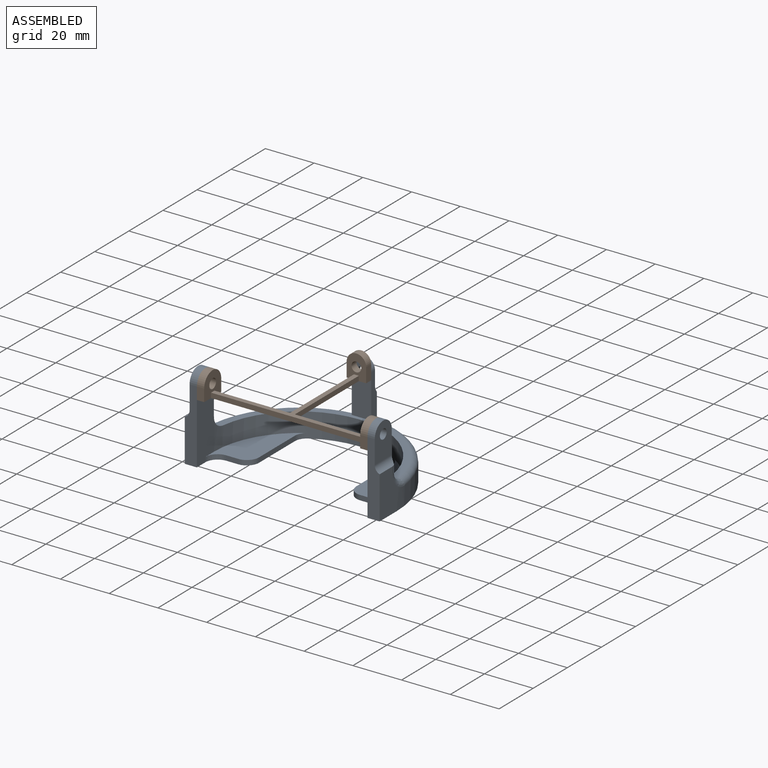
[diagram: assembled view]
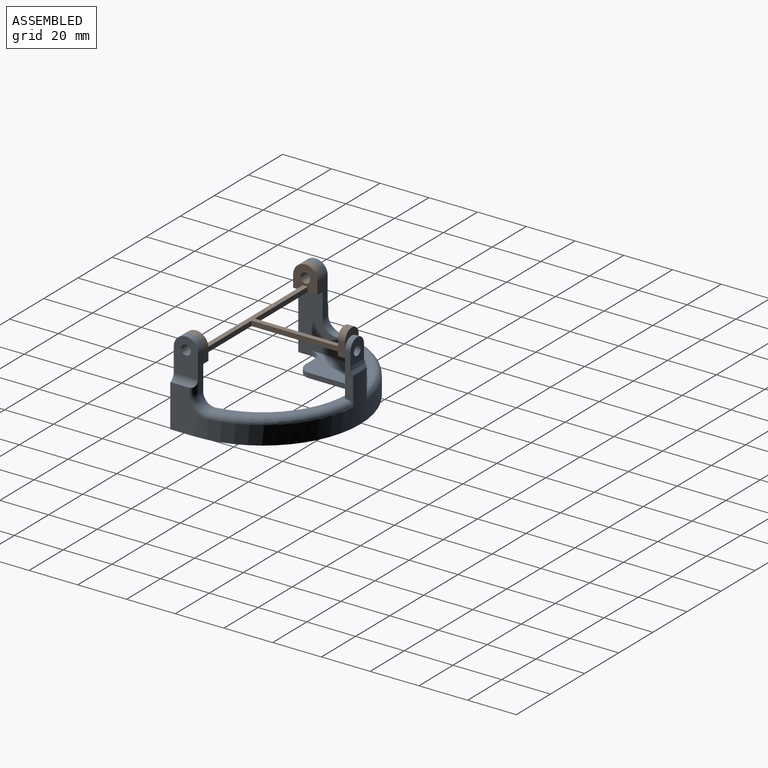
[diagram: assembled view, second angle]
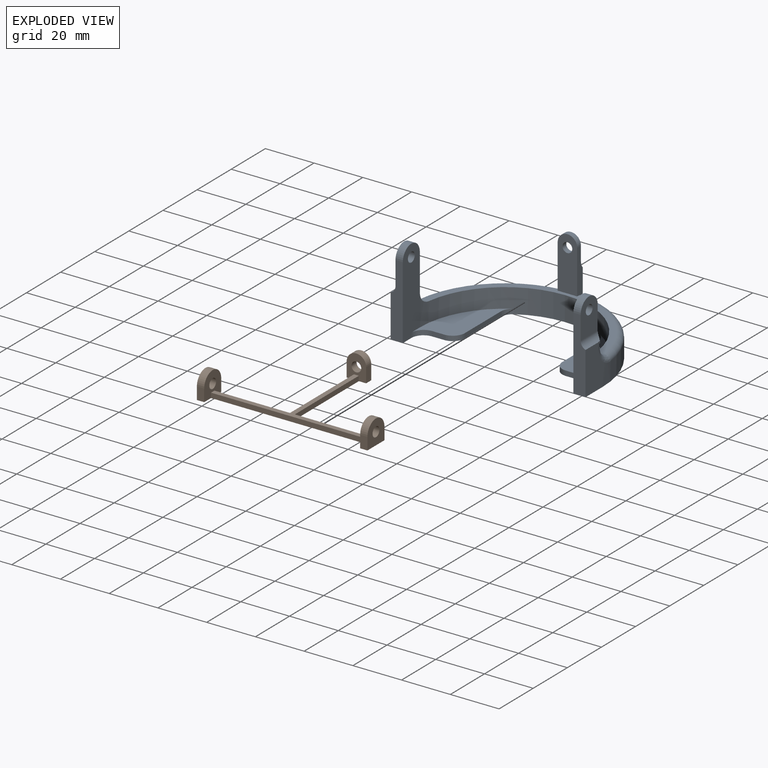
[diagram: exploded view]
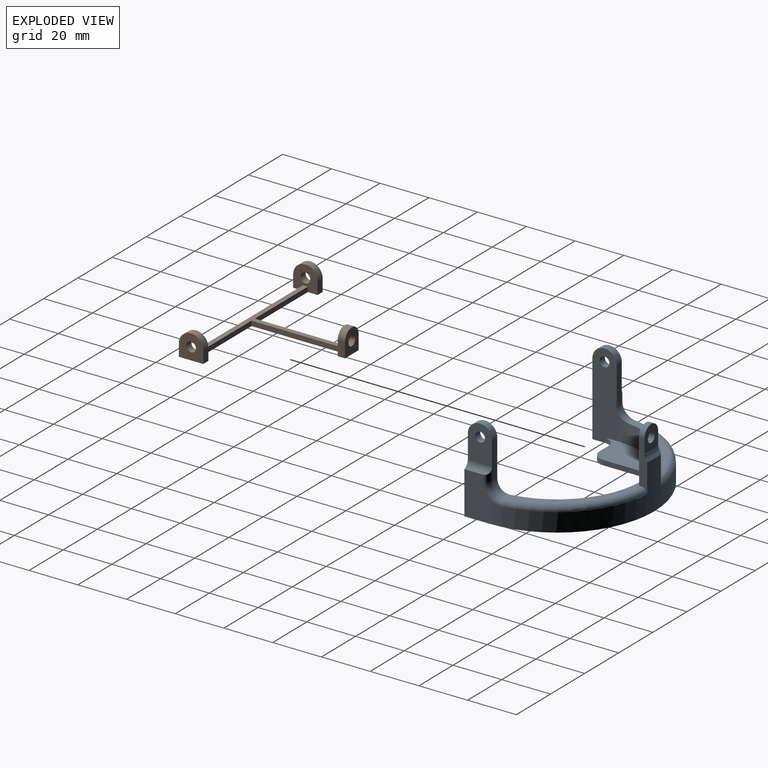
[diagram: exploded view, second angle]
ASSEMBLY  parts=2 mates=3
PART A: 49 faces, bbox 85.9x53.2x35.1 mm
  f0: plane 20.62x3.42mm, normal (-1,0,0), area 52.3mm2, adj f2,f3,f36,f38,f39,f40,f45
  f1: plane 20.62x3.42mm, normal (1,0,0), area 52.3mm2, adj f2,f3,f36,f38,f39,f40,f41
  f2: cylinder r=40mm len=80mm, axis (0,0,-1), area 1048.9mm2, adj f0,f1,f6,f15,f20,f40,f41,f42
  f3: plane 74.33x32.29mm, normal (0,0,1), area 252.2mm2, adj f0,f1,f10,f22,f23,f36,f41,f45
  f4: plane 15x2.5mm, normal (0,1,0), area 37.5mm2, adj f19,f22,f24,f44
  f5: cylinder r=2mm len=4mm, axis (-1,0,0), area 37.7mm2, adj f19,f33
  f6: plane 17.5x10mm, normal (-1,0,0), area 159.1mm2, adj f2,f7,f15,f35,f47,f48
  f7: plane 30x5mm, normal (0,-1,0), area 126.5mm2, adj f6,f15,f18,f25,f32,f35
  f8: plane 15x2.5mm, normal (0,1,0), area 37.5mm2, adj f18,f23,f25,f48
  f9: cylinder r=2mm len=4mm, axis (-1,0,0), area 37.7mm2, adj f18,f32
  f10: cylinder r=35mm len=70mm, axis (0,0,-1), area 963.7mm2, adj f3,f15,f16,f17,f18,f19,f22,f23
  f11: plane 5x2mm, normal (0,-1,0), area 10mm2, adj f15,f17,f26,f31
  f12: plane 20.98x2mm, normal (1,0,0), area 42mm2, adj f15,f16,f28,f29
  f13: plane 20.98x2mm, normal (-1,0,0), area 42mm2, adj f15,f17,f30,f31
  f14: plane 5x2mm, normal (0,-1,0), area 10mm2, adj f15,f16,f27,f28
  f15: plane 80x50mm, normal (0,0,-1), area 1296.2mm2, adj f2,f6,f7,f10,f11,f12,f13,f14
  f16: plane 35.31x17.5mm, normal (0,0,1), area 303.6mm2, adj f10,f12,f14,f18,f27,f28,f29
  f17: plane 35.31x17.5mm, normal (0,0,1), area 303.6mm2, adj f10,f11,f13,f19,f26,f30,f31
  f18: plane 35x10mm, normal (1,0,0), area 316.7mm2, adj f7,f8,f9,f10,f15,f16,f25,f27
  f19: plane 35x10mm, normal (-1,0,0), area 316.7mm2, adj f4,f5,f10,f15,f17,f21,f24,f26
  f20: plane 17.5x10mm, normal (1,0,0), area 159.1mm2, adj f2,f15,f21,f34,f43,f44
  f21: plane 30x5mm, normal (0,-1,0), area 126.5mm2, adj f15,f19,f20,f24,f33,f34
  f22: cylinder r=5mm len=5mm, axis (-1,0,0), area 20.4mm2, adj f3,f4,f10,f42,f43
  f23: cylinder r=5mm len=5mm, axis (-1,0,0), area 20.4mm2, adj f3,f8,f10,f46,f47
  f24: cylinder r=5mm len=10mm, axis (1,0,0), area 46.9mm2, adj f4,f19,f21,f33,f44
  f25: cylinder r=5mm len=10mm, axis (1,0,0), area 46.9mm2, adj f7,f8,f18,f32,f48
  f26: cylinder r=5mm len=5mm, axis (0,0,-1), area 15.7mm2, adj f11,f15,f17,f19
  f27: cylinder r=5mm len=5mm, axis (0,0,-1), area 15.7mm2, adj f14,f15,f16,f18
  f28: cylinder r=5mm len=5mm, axis (0,0,-1), area 15.7mm2, adj f12,f14,f15,f16
  f29: cylinder r=5mm len=4.33mm, axis (0,0,-1), area 10.5mm2, adj f10,f12,f15,f16
  f30: cylinder r=5mm len=4.33mm, axis (0,0,-1), area 10.5mm2, adj f10,f13,f15,f17
  f31: cylinder r=5mm len=5mm, axis (0,0,-1), area 15.7mm2, adj f11,f13,f15,f17
  f32: plane 14.67x9.95mm, normal (-1,0,0), area 122.9mm2, adj f7,f9,f25,f35,f48
  f33: plane 14.67x9.95mm, normal (1,0,0), area 122.9mm2, adj f5,f21,f24,f34,f44
  f34: cylinder r=3mm len=9.95mm, axis (0,-1,0), area 32.2mm2, adj f20,f21,f33,f44
  f35: cylinder r=3mm len=9.95mm, axis (0,-1,0), area 32.2mm2, adj f6,f7,f32,f48
  f36: plane 22x8mm, normal (0,-1,0), area 156.6mm2, adj f0,f1,f3,f37,f39
  f37: cylinder r=2mm len=4mm, axis (0,-1,0), area 27.6mm2, adj f36,f38
  f38: plane 9.74x8.01mm, normal (0,1,0), area 57.4mm2, adj f0,f1,f37,f39,f40
  f39: cylinder r=4mm len=8mm, axis (0,-1,0), area 27.6mm2, adj f0,f1,f36,f38
  f40: bspline ~8.58x2.95mm, area 25.8mm2, adj f0,f1,f2,f38
  f41: torus R=37.5mm, axis (0,0,1), area 204.7mm2, adj f1,f2,f3,f42
  f42: bspline ~7.66x4.36mm, area 17.6mm2, adj f2,f22,f41,f43
  f43: torus R=7.5mm, axis (1,0,0), area 19.5mm2, adj f20,f22,f42,f44
  f44: cylinder r=2.5mm len=15.71mm, axis (0,0,-1), area 18.1mm2, adj f4,f20,f24,f33,f34,f43
  f45: torus R=37.5mm, axis (0,0,1), area 204.7mm2, adj f0,f2,f3,f46
  f46: bspline ~7.66x4.36mm, area 17.6mm2, adj f2,f23,f45,f47
  f47: torus R=7.5mm, axis (1,0,0), area 19.5mm2, adj f6,f23,f46,f48
  f48: cylinder r=2.5mm len=15.71mm, axis (0,0,-1), area 18.1mm2, adj f6,f8,f25,f32,f35,f47
PART B: 25 faces, bbox 70x46.5x10 mm
  f0: plane 64x39.5mm, normal (0,0,1), area 203mm2, adj f1,f2,f6,f7,f11,f17,f18,f19
  f1: plane 31x2mm, normal (0,1,0), area 62mm2, adj f0,f11,f12,f17
  f2: plane 31x2mm, normal (0,1,0), area 62mm2, adj f0,f6,f12,f18
  f3: plane 5x3mm, normal (0,1,0), area 15mm2, adj f4,f6,f12,f16
  f4: plane 10x10mm, normal (-1,0,0), area 76.7mm2, adj f3,f5,f12,f14,f16
  f5: plane 5x3mm, normal (0,-1,0), area 15mm2, adj f4,f6,f12,f16
  f6: plane 10x10mm, normal (1,0,0), area 72.7mm2, adj f0,f2,f3,f5,f7,f12,f14,f16
  f7: plane 64x2mm, normal (0,-1,0), area 128mm2, adj f0,f6,f11,f12
  f8: plane 5x3mm, normal (0,-1,0), area 15mm2, adj f9,f11,f12,f15
  f9: plane 10x10mm, normal (1,0,0), area 76.7mm2, adj f8,f10,f12,f13,f15
  f10: plane 5x3mm, normal (0,1,0), area 15mm2, adj f9,f11,f12,f15
  f11: plane 10x10mm, normal (-1,0,0), area 72.7mm2, adj f0,f1,f7,f8,f10,f12,f13,f15
  f12: plane 70x46.5mm, normal (0,0,-1), area 287mm2, adj f1,f2,f3,f4,f5,f6,f7,f8
  f13: cylinder r=2mm len=4mm, axis (-1,0,0), area 37.7mm2, adj f9,f11
  f14: cylinder r=2mm len=4mm, axis (-1,0,0), area 37.7mm2, adj f4,f6
  f15: cylinder r=5mm len=10mm, axis (1,0,0), area 47.1mm2, adj f8,f9,f10,f11
  f16: cylinder r=5mm len=10mm, axis (-1,0,0), area 47.1mm2, adj f3,f4,f5,f6
  f17: plane 37.5x2mm, normal (1,0,0), area 75mm2, adj f0,f1,f12,f19
  f18: plane 37.5x2mm, normal (-1,0,0), area 75mm2, adj f0,f2,f12,f19
  f19: plane 10x8mm, normal (0,-1,0), area 56.6mm2, adj f0,f12,f17,f18,f20,f21,f23,f24
  f20: plane 6x3mm, normal (-1,0,0), area 18mm2, adj f12,f19,f22,f24
  f21: plane 6x3mm, normal (1,0,0), area 18mm2, adj f12,f19,f22,f24
  f22: plane 10x8mm, normal (0,1,0), area 60.6mm2, adj f12,f20,f21,f23,f24
  f23: cylinder r=2mm len=4mm, axis (0,1,0), area 37.7mm2, adj f19,f22
  f24: cylinder r=4mm len=8mm, axis (0,-1,0), area 37.7mm2, adj f19,f20,f21,f22
PLACE A t=(-16.52,-13.59,2.25)mm
PLACE B t=(-16.52,-18.59,27.25)mm
MATE planar A.f36 <-> B.f22  axis (0,-1,0) through (-16.52,22.91,22.33)mm
MATE planar B.f9 <-> A.f19  axis (1,0,0) through (18.48,-18.59,27.25)mm
MATE cylindrical B.f13 <-> A.f5  axis (1,0,0) through (18.48,-18.59,32.25)mm
